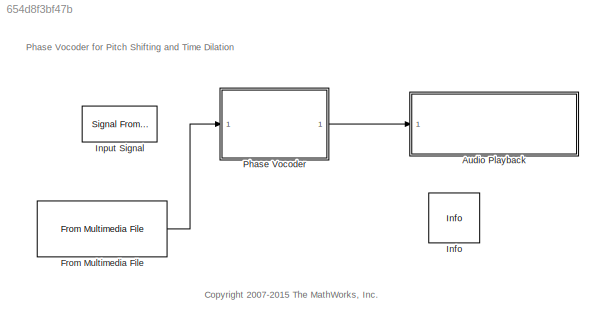
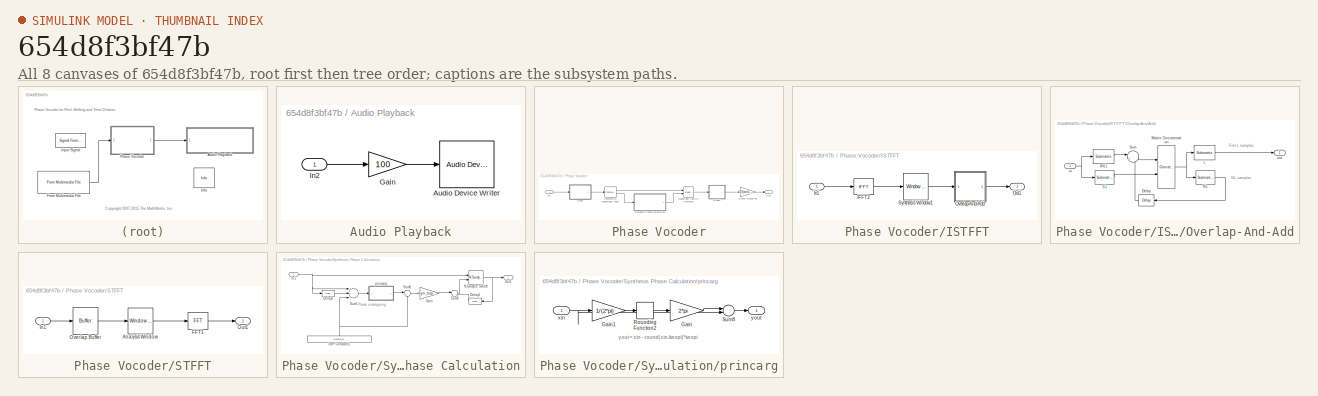
[diagram: thumbnail index - all 8 canvases of the model, root first then tree order]
MODEL slx_654d8f3bf47b
KIND model
CONFIG AbsTol = auto
CONFIG EnableMultiTasking = on
CONFIG FixedStep = auto
CONFIG MaxStep = auto
CONFIG MinStep = auto
CONFIG PreLoadFcn = load clean_speech.mat;\n
CONFIG RelTol = 1e-3
CONFIG SampleTimeConstraint = Unconstrained
CONFIG Solver = FixedStepDiscrete
CONFIG SolverName = FixedStepDiscrete
CONFIG StartTime = 0.0
CONFIG StopTime = 4
BLOCK [SubSystem] Audio Playback
  Ports = [1]
  RequestExecContextInheritance = off
BLOCK [Reference] Audio Playback/Audio Device Writer  REF=dspsnks4/Audio Device
Writer
  Ports = [1]
  SourceBlock = dspsnks4/Audio Device\nWriter
  SourceProductBaseCode = DS
  SourceProductName = DSP System Toolbox
  SourceType = Audio Device Writer
BLOCK [Gain] Audio Playback/Gain
  Gain = 100
  OutDataTypeStr = Inherit: Inherit via internal rule
  ParamDataTypeStr = Inherit: Inherit via internal rule
  SaturateOnIntegerOverflow = off
BLOCK [Inport] Audio Playback/In2
  IconDisplay = Port number
BLOCK [Reference] From Multimedia File  REF=dspvision/From Multimedia File
  Ports = [0, 1]
  SourceBlock = dspvision/From Multimedia File
  SourceProductBaseCode = VP
  SourceProductName = Computer Vision System Toolbox
  SourceType = From Multimedia File
BLOCK [Reference] Info  REF=audioutils/Info
  Ports = []
  SourceBlock = audioutils/Info
  SourceProductBaseCode = AU
  SourceProductName = Audio System Toolbox
  SourceType = Info
BLOCK [Reference] Input Signal  REF=dspsrcs4/Signal From
Workspace
  Ports = [0, 1]
  SourceBlock = dspsrcs4/Signal From\nWorkspace
  SourceProductBaseCode = DS
  SourceProductName = DSP System Toolbox
  SourceType = Signal From Workspace
BLOCK [SubSystem] Phase Vocoder
  Ports = [1, 1]
  RequestExecContextInheritance = off
BLOCK [ComplexToMagnitudeAngle] Phase Vocoder/Complex to Magnitude-Angle
  Ports = [1, 2]
BLOCK [SubSystem] Phase Vocoder/ISTFFT
  Ports = [1, 1]
  RequestExecContextInheritance = off
BLOCK [Reference] Phase Vocoder/ISTFFT/IFFT2  REF=dspxfrm3/IFFT
  Ports = [1, 1]
  SourceBlock = dspxfrm3/IFFT
  SourceProductBaseCode = DS
  SourceProductName = DSP System Toolbox
  SourceType = IFFT
BLOCK [Inport] Phase Vocoder/ISTFFT/In1
  IconDisplay = Port number
BLOCK [Outport] Phase Vocoder/ISTFFT/Out1
  IconDisplay = Port number
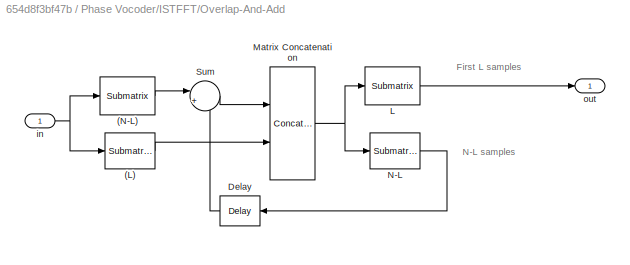
BLOCK [SubSystem] Phase Vocoder/ISTFFT/Overlap-And-Add
  Ports = [1, 1]
  RequestExecContextInheritance = off
BLOCK [Reference] Phase Vocoder/ISTFFT/Overlap-And-Add/(L)  REF=dspmtrx3/Submatrix
  Ports = [1, 1]
  SourceBlock = dspmtrx3/Submatrix
  SourceProductBaseCode = DS
  SourceProductName = DSP System Toolbox
  SourceType = Submatrix
BLOCK [Reference] Phase Vocoder/ISTFFT/Overlap-And-Add/(N-L)  REF=dspmtrx3/Submatrix
  Ports = [1, 1]
  SourceBlock = dspmtrx3/Submatrix
  SourceProductBaseCode = DS
  SourceProductName = DSP System Toolbox
  SourceType = Submatrix
BLOCK [Delay] Phase Vocoder/ISTFFT/Overlap-And-Add/Delay
  DelayLength = 1
  InitialCondition = 0
  InputPortMap = u0
  Ports = [1, 1]
  UserDataPersistent = on
BLOCK [Reference] Phase Vocoder/ISTFFT/Overlap-And-Add/L  REF=dspmtrx3/Submatrix
  Ports = [1, 1]
  SourceBlock = dspmtrx3/Submatrix
  SourceProductBaseCode = DS
  SourceProductName = DSP System Toolbox
  SourceType = Submatrix
BLOCK [Concatenate] Phase Vocoder/ISTFFT/Overlap-And-Add/Matrix Concatenation
  Mode = Multidimensional array
  Ports = [2, 1]
BLOCK [Reference] Phase Vocoder/ISTFFT/Overlap-And-Add/N-L  REF=dspmtrx3/Submatrix
  Ports = [1, 1]
  SourceBlock = dspmtrx3/Submatrix
  SourceProductBaseCode = DS
  SourceProductName = DSP System Toolbox
  SourceType = Submatrix
BLOCK [Sum] Phase Vocoder/ISTFFT/Overlap-And-Add/Sum
  IconShape = round
  Inputs = |++
  Ports = [2, 1]
BLOCK [Inport] Phase Vocoder/ISTFFT/Overlap-And-Add/in
  IconDisplay = Port number
BLOCK [Outport] Phase Vocoder/ISTFFT/Overlap-And-Add/out
  IconDisplay = Port number
BLOCK [Reference] Phase Vocoder/ISTFFT/Synthesis Window1  REF=dspsigops/Window
Function
  Ports = [1, 1]
  SourceBlock = dspsigops/Window\nFunction
  SourceProductBaseCode = DS
  SourceProductName = DSP System Toolbox
  SourceType = Window Function
BLOCK [Inport] Phase Vocoder/In1
  IconDisplay = Port number
BLOCK [MagnitudeAngleToComplex] Phase Vocoder/Magnitude-Angle to Complex1
  Ports = [2, 1]
BLOCK [Outport] Phase Vocoder/Out1
  IconDisplay = Port number
BLOCK [SubSystem] Phase Vocoder/STFFT
  Ports = [1, 1]
  RequestExecContextInheritance = off
BLOCK [Reference] Phase Vocoder/STFFT/Analysis Window  REF=dspsigops/Window
Function
  Ports = [1, 1]
  SourceBlock = dspsigops/Window\nFunction
  SourceProductBaseCode = DS
  SourceProductName = DSP System Toolbox
  SourceType = Window Function
BLOCK [Reference] Phase Vocoder/STFFT/FFT1  REF=dspxfrm3/FFT
  Ports = [1, 1]
  SourceBlock = dspxfrm3/FFT
  SourceProductBaseCode = DS
  SourceProductName = DSP System Toolbox
  SourceType = FFT
BLOCK [Inport] Phase Vocoder/STFFT/In1
  IconDisplay = Port number
BLOCK [Outport] Phase Vocoder/STFFT/Out1
  IconDisplay = Port number
BLOCK [Buffer] Phase Vocoder/STFFT/Overlap Buffer
  N = winLen
  OutputFrames = off
  V = winLen-ana_hopSize
BLOCK [Gain] Phase Vocoder/Signal Rescaling
  Gain = 1/(winLen*sum(hanning(winLen,'periodic').^2)/syn_hopSize)
  SaturateOnIntegerOverflow = off
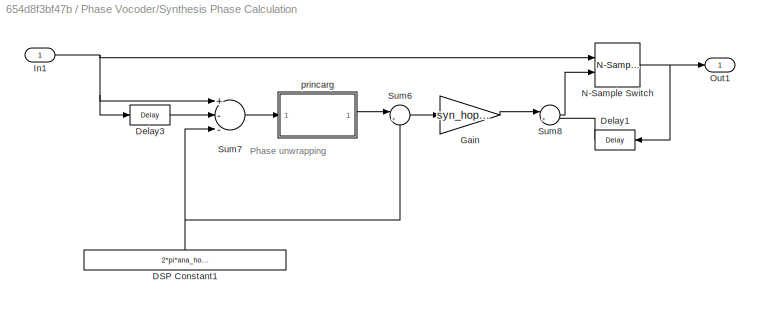
BLOCK [SubSystem] Phase Vocoder/Synthesis Phase Calculation
  Ports = [1, 1]
  RequestExecContextInheritance = off
BLOCK [Constant] Phase Vocoder/Synthesis Phase Calculation/DSP Constant1
  SampleTime = 64/8000
  Value = 2*pi*ana_hopSize*[0:winLen-1]'/winLen
  VectorParams1D = off
BLOCK [Delay] Phase Vocoder/Synthesis Phase Calculation/Delay1
  DelayLength = 1
  InitialCondition = 0
  InputPortMap = u0
  Ports = [1, 1]
  UserDataPersistent = on
BLOCK [Delay] Phase Vocoder/Synthesis Phase Calculation/Delay3
  DelayLength = 1
  InitialCondition = 0
  InputPortMap = u0
  Ports = [1, 1]
  UserDataPersistent = on
BLOCK [Gain] Phase Vocoder/Synthesis Phase Calculation/Gain
  Gain = syn_hopSize/ana_hopSize
  SaturateOnIntegerOverflow = off
BLOCK [Inport] Phase Vocoder/Synthesis Phase Calculation/In1
  IconDisplay = Port number
BLOCK [Reference] Phase Vocoder/Synthesis Phase Calculation/N-Sample Switch  REF=dspswit3/N-Sample
Switch
  Ports = [2, 1]
  SourceBlock = dspswit3/N-Sample\nSwitch
  SourceProductBaseCode = DS
  SourceProductName = DSP System Toolbox
  SourceType = N-Sample Switch
BLOCK [Outport] Phase Vocoder/Synthesis Phase Calculation/Out1
  IconDisplay = Port number
BLOCK [Sum] Phase Vocoder/Synthesis Phase Calculation/Sum6
  IconShape = round
  InputSameDT = off
  Inputs = |++
  OutDataTypeStr = Inherit: Inherit via internal rule
  Ports = [2, 1]
BLOCK [Sum] Phase Vocoder/Synthesis Phase Calculation/Sum7
  InputSameDT = off
  Inputs = +--
  OutDataTypeStr = Inherit: Inherit via internal rule
  Ports = [3, 1]
BLOCK [Sum] Phase Vocoder/Synthesis Phase Calculation/Sum8
  IconShape = round
  InputSameDT = off
  Inputs = |++
  OutDataTypeStr = Inherit: Inherit via internal rule
  Ports = [2, 1]
BLOCK [SubSystem] Phase Vocoder/Synthesis Phase Calculation/princarg
  Ports = [1, 1]
  RequestExecContextInheritance = off
BLOCK [Gain] Phase Vocoder/Synthesis Phase Calculation/princarg/Gain
  Gain = 2*pi
  SaturateOnIntegerOverflow = off
BLOCK [Gain] Phase Vocoder/Synthesis Phase Calculation/princarg/Gain1
  Gain = 1/(2*pi)
  SaturateOnIntegerOverflow = off
BLOCK [Rounding] Phase Vocoder/Synthesis Phase Calculation/princarg/Rounding Function2
  Operator = round
BLOCK [Sum] Phase Vocoder/Synthesis Phase Calculation/princarg/Sum8
  IconShape = round
  InputSameDT = off
  Inputs = |-+
  OutDataTypeStr = Inherit: Inherit via internal rule
  Ports = [2, 1]
BLOCK [Inport] Phase Vocoder/Synthesis Phase Calculation/princarg/xin
  IconDisplay = Port number
BLOCK [Outport] Phase Vocoder/Synthesis Phase Calculation/princarg/yout
  IconDisplay = Port number
ANNOTATION (root): Phase Vocoder for Pitch Shifting and Time Dilation
ANNOTATION (root): <copyright redacted>
ANNOTATION Phase Vocoder/ISTFFT/Overlap-And-Add: First L samples
ANNOTATION Phase Vocoder/ISTFFT/Overlap-And-Add: N-L samples
ANNOTATION Phase Vocoder/Synthesis Phase Calculation: Phase unwrapping
ANNOTATION Phase Vocoder/Synthesis Phase Calculation/princarg: yout = xin - round(xin./twopi)*twopi
LINE Audio Playback/Gain:1 -> Audio Playback/Audio Device Writer:1
LINE Audio Playback/In2:1 -> Audio Playback/Gain:1
LINE From Multimedia File:1 -> Phase Vocoder:1
LINE Phase Vocoder/Complex to Magnitude-Angle:1 -> Phase Vocoder/Magnitude-Angle to Complex1:1
LINE Phase Vocoder/Complex to Magnitude-Angle:2 -> Phase Vocoder/Synthesis Phase Calculation:1
LINE Phase Vocoder/ISTFFT/IFFT2:1 -> Phase Vocoder/ISTFFT/Synthesis Window1:1
LINE Phase Vocoder/ISTFFT/In1:1 -> Phase Vocoder/ISTFFT/IFFT2:1
LINE Phase Vocoder/ISTFFT/Overlap-And-Add/(L):1 -> Phase Vocoder/ISTFFT/Overlap-And-Add/Matrix Concatenation:2
LINE Phase Vocoder/ISTFFT/Overlap-And-Add/(N-L):1 -> Phase Vocoder/ISTFFT/Overlap-And-Add/Sum:1
LINE Phase Vocoder/ISTFFT/Overlap-And-Add/Delay:1 -> Phase Vocoder/ISTFFT/Overlap-And-Add/Sum:2
LINE Phase Vocoder/ISTFFT/Overlap-And-Add/L:1 -> Phase Vocoder/ISTFFT/Overlap-And-Add/out:1
NET Phase Vocoder/ISTFFT/Overlap-And-Add/Matrix Concatenation:1 -> Phase Vocoder/ISTFFT/Overlap-And-Add/L:1, Phase Vocoder/ISTFFT/Overlap-And-Add/N-L:1
LINE Phase Vocoder/ISTFFT/Overlap-And-Add/N-L:1 -> Phase Vocoder/ISTFFT/Overlap-And-Add/Delay:1
LINE Phase Vocoder/ISTFFT/Overlap-And-Add/Sum:1 -> Phase Vocoder/ISTFFT/Overlap-And-Add/Matrix Concatenation:1
NET Phase Vocoder/ISTFFT/Overlap-And-Add/in:1 -> Phase Vocoder/ISTFFT/Overlap-And-Add/(L):1, Phase Vocoder/ISTFFT/Overlap-And-Add/(N-L):1
LINE Phase Vocoder/ISTFFT/Overlap-And-Add:1 -> Phase Vocoder/ISTFFT/Out1:1
LINE Phase Vocoder/ISTFFT/Synthesis Window1:1 -> Phase Vocoder/ISTFFT/Overlap-And-Add:1
LINE Phase Vocoder/ISTFFT:1 -> Phase Vocoder/Signal Rescaling:1
LINE Phase Vocoder/In1:1 -> Phase Vocoder/STFFT:1
LINE Phase Vocoder/Magnitude-Angle to Complex1:1 -> Phase Vocoder/ISTFFT:1
LINE Phase Vocoder/STFFT/Analysis Window:1 -> Phase Vocoder/STFFT/FFT1:1
LINE Phase Vocoder/STFFT/FFT1:1 -> Phase Vocoder/STFFT/Out1:1
LINE Phase Vocoder/STFFT/In1:1 -> Phase Vocoder/STFFT/Overlap Buffer:1
LINE Phase Vocoder/STFFT/Overlap Buffer:1 -> Phase Vocoder/STFFT/Analysis Window:1
LINE Phase Vocoder/STFFT:1 -> Phase Vocoder/Complex to Magnitude-Angle:1
LINE Phase Vocoder/Signal Rescaling:1 -> Phase Vocoder/Out1:1
NET Phase Vocoder/Synthesis Phase Calculation/DSP Constant1:1 -> Phase Vocoder/Synthesis Phase Calculation/Sum6:2, Phase Vocoder/Synthesis Phase Calculation/Sum7:3
LINE Phase Vocoder/Synthesis Phase Calculation/Delay1:1 -> Phase Vocoder/Synthesis Phase Calculation/Sum8:2
LINE Phase Vocoder/Synthesis Phase Calculation/Delay3:1 -> Phase Vocoder/Synthesis Phase Calculation/Sum7:2
LINE Phase Vocoder/Synthesis Phase Calculation/Gain:1 -> Phase Vocoder/Synthesis Phase Calculation/Sum8:1
NET Phase Vocoder/Synthesis Phase Calculation/In1:1 -> Phase Vocoder/Synthesis Phase Calculation/Delay3:1, Phase Vocoder/Synthesis Phase Calculation/N-Sample Switch:1, Phase Vocoder/Synthesis Phase Calculation/Sum7:1
NET Phase Vocoder/Synthesis Phase Calculation/N-Sample Switch:1 -> Phase Vocoder/Synthesis Phase Calculation/Delay1:1, Phase Vocoder/Synthesis Phase Calculation/Out1:1
LINE Phase Vocoder/Synthesis Phase Calculation/Sum6:1 -> Phase Vocoder/Synthesis Phase Calculation/Gain:1
LINE Phase Vocoder/Synthesis Phase Calculation/Sum7:1 -> Phase Vocoder/Synthesis Phase Calculation/princarg:1
LINE Phase Vocoder/Synthesis Phase Calculation/Sum8:1 -> Phase Vocoder/Synthesis Phase Calculation/N-Sample Switch:2
LINE Phase Vocoder/Synthesis Phase Calculation/princarg/Gain1:1 -> Phase Vocoder/Synthesis Phase Calculation/princarg/Rounding Function2:1
LINE Phase Vocoder/Synthesis Phase Calculation/princarg/Gain:1 -> Phase Vocoder/Synthesis Phase Calculation/princarg/Sum8:1
LINE Phase Vocoder/Synthesis Phase Calculation/princarg/Rounding Function2:1 -> Phase Vocoder/Synthesis Phase Calculation/princarg/Gain:1
LINE Phase Vocoder/Synthesis Phase Calculation/princarg/Sum8:1 -> Phase Vocoder/Synthesis Phase Calculation/princarg/yout:1
NET Phase Vocoder/Synthesis Phase Calculation/princarg/xin:1 -> Phase Vocoder/Synthesis Phase Calculation/princarg/Gain1:1, Phase Vocoder/Synthesis Phase Calculation/princarg/Sum8:2
LINE Phase Vocoder/Synthesis Phase Calculation/princarg:1 -> Phase Vocoder/Synthesis Phase Calculation/Sum6:1
LINE Phase Vocoder/Synthesis Phase Calculation:1 -> Phase Vocoder/Magnitude-Angle to Complex1:2
LINE Phase Vocoder:1 -> Audio Playback:1
note: NET lines group one-source signal fan-out (src -> all destinations, sorted); 1:1 wires keep LINE
